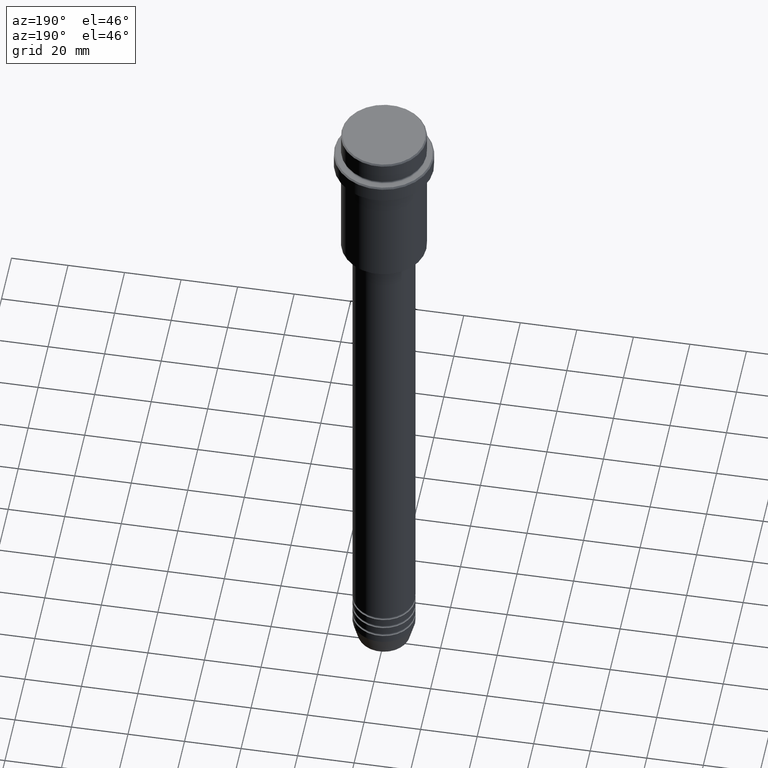
[diagram: clean part render]
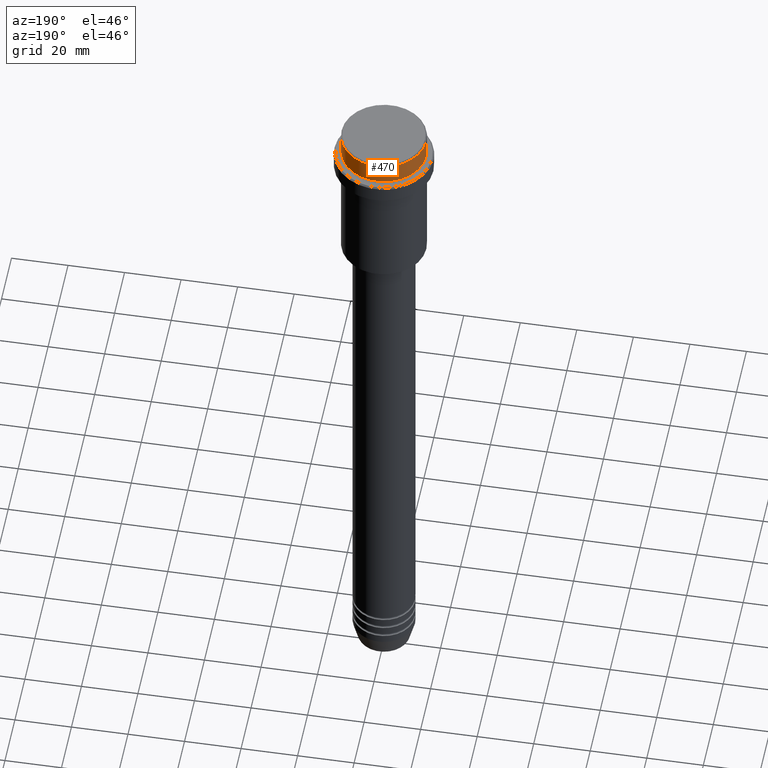
[diagram: same view with one face highlighted and labeled with its STEP entity id]
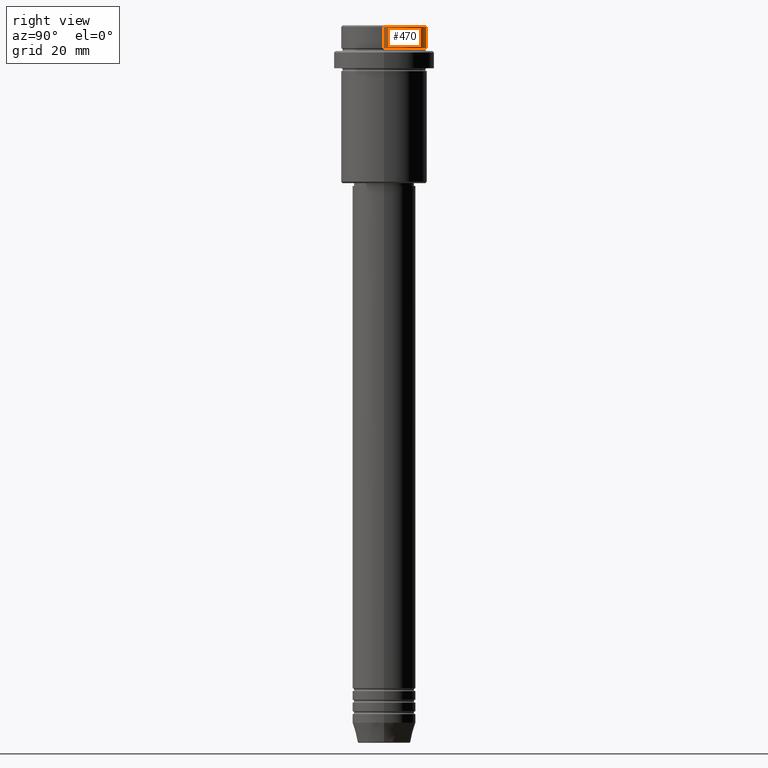
[diagram: same view with one face highlighted and labeled with its STEP entity id]
A machine part, auxiliary view. The second image highlights one B-rep face of the part: STEP entity #470.
A second angle (right view) of the same face is appended — the face is thin or edge-on in the first view.
In plain terms, the highlighted cylindrical surface (partial cylindrical patch) has radius 15 mm, axis along (-0, -0, 1).
Its self-contained STEP definition (entity closure, byte-faithful):
#27 = CARTESIAN_POINT ( 'NONE',  ( 0.000000000000000000, 0.000000000000000000, -7.999999999999998224 ) ) ;
#118 = CARTESIAN_POINT ( 'NONE',  ( 0.000000000000000000, 0.000000000000000000, 0.000000000000000000 ) ) ;
#160 = DIRECTION ( 'NONE',  ( -0.000000000000000000, -0.000000000000000000, 1.000000000000000000 ) ) ;
#165 = DIRECTION ( 'NONE',  ( 0.000000000000000000, 0.000000000000000000, -1.000000000000000000 ) ) ;
#183 = EDGE_CURVE ( 'NONE', #275, #545, #476, .T. ) ;
#205 = CYLINDRICAL_SURFACE ( 'NONE', #960, 15.00000000000000000 ) ;
#239 = ORIENTED_EDGE ( 'NONE', *, *, #961, .T. ) ;
#260 = VECTOR ( 'NONE', #1338, 1000.000000000000000 ) ;
#261 = DIRECTION ( 'NONE',  ( -0.000000000000000000, -0.000000000000000000, 1.000000000000000000 ) ) ;
#275 = VERTEX_POINT ( 'NONE', #1368 ) ;
#287 = CARTESIAN_POINT ( 'NONE',  ( 15.00000000000000000, 0.000000000000000000, -0.5000000000000108802 ) ) ;
#305 = VERTEX_POINT ( 'NONE', #287 ) ;
#317 = DIRECTION ( 'NONE',  ( 1.000000000000000000, 0.000000000000000000, 0.000000000000000000 ) ) ;
#344 = DIRECTION ( 'NONE',  ( 1.000000000000000000, 0.000000000000000000, 0.000000000000000000 ) ) ;
#393 = AXIS2_PLACEMENT_3D ( 'NONE', #27, #160, #1334 ) ;
#470 = ADVANCED_FACE ( 'NONE', ( #1208 ), #205, .T. ) ;
#476 = CIRCLE ( 'NONE', #393, 15.00000000000000000 ) ;
#506 = ORIENTED_EDGE ( 'NONE', *, *, #183, .T. ) ;
#542 = CARTESIAN_POINT ( 'NONE',  ( -15.00000000000000000, 1.836970198721029589E-15, -7.999999999999998224 ) ) ;
#545 = VERTEX_POINT ( 'NONE', #542 ) ;
#678 = DIRECTION ( 'NONE',  ( -0.000000000000000000, -0.000000000000000000, 1.000000000000000000 ) ) ;
#738 = AXIS2_PLACEMENT_3D ( 'NONE', #820, #165, #317 ) ;
#766 = LINE ( 'NONE', #1312, #1298 ) ;
#777 = EDGE_CURVE ( 'NONE', #1279, #305, #870, .T. ) ;
#820 = CARTESIAN_POINT ( 'NONE',  ( 0.000000000000000000, 0.000000000000000000, -0.5000000000000108802 ) ) ;
#870 = CIRCLE ( 'NONE', #738, 15.00000000000000000 ) ;
#901 = LINE ( 'NONE', #1228, #260 ) ;
#939 = EDGE_CURVE ( 'NONE', #275, #305, #766, .T. ) ;
#960 = AXIS2_PLACEMENT_3D ( 'NONE', #118, #678, #344 ) ;
#961 = EDGE_CURVE ( 'NONE', #545, #1279, #901, .T. ) ;
#1122 = ORIENTED_EDGE ( 'NONE', *, *, #939, .F. ) ;
#1208 = FACE_OUTER_BOUND ( 'NONE', #1263, .T. ) ;
#1226 = ORIENTED_EDGE ( 'NONE', *, *, #777, .T. ) ;
#1228 = CARTESIAN_POINT ( 'NONE',  ( -15.00000000000000000, 1.836970198721029589E-15, 0.000000000000000000 ) ) ;
#1263 = EDGE_LOOP ( 'NONE', ( #506, #239, #1226, #1122 ) ) ;
#1279 = VERTEX_POINT ( 'NONE', #1399 ) ;
#1298 = VECTOR ( 'NONE', #261, 1000.000000000000000 ) ;
#1312 = CARTESIAN_POINT ( 'NONE',  ( 15.00000000000000000, 0.000000000000000000, 0.000000000000000000 ) ) ;
#1334 = DIRECTION ( 'NONE',  ( 1.000000000000000000, 0.000000000000000000, 0.000000000000000000 ) ) ;
#1338 = DIRECTION ( 'NONE',  ( -0.000000000000000000, -0.000000000000000000, 1.000000000000000000 ) ) ;
#1368 = CARTESIAN_POINT ( 'NONE',  ( 15.00000000000000000, 0.000000000000000000, -7.999999999999998224 ) ) ;
#1399 = CARTESIAN_POINT ( 'NONE',  ( -15.00000000000000000, 1.836970198721029589E-15, -0.5000000000000108802 ) ) ;